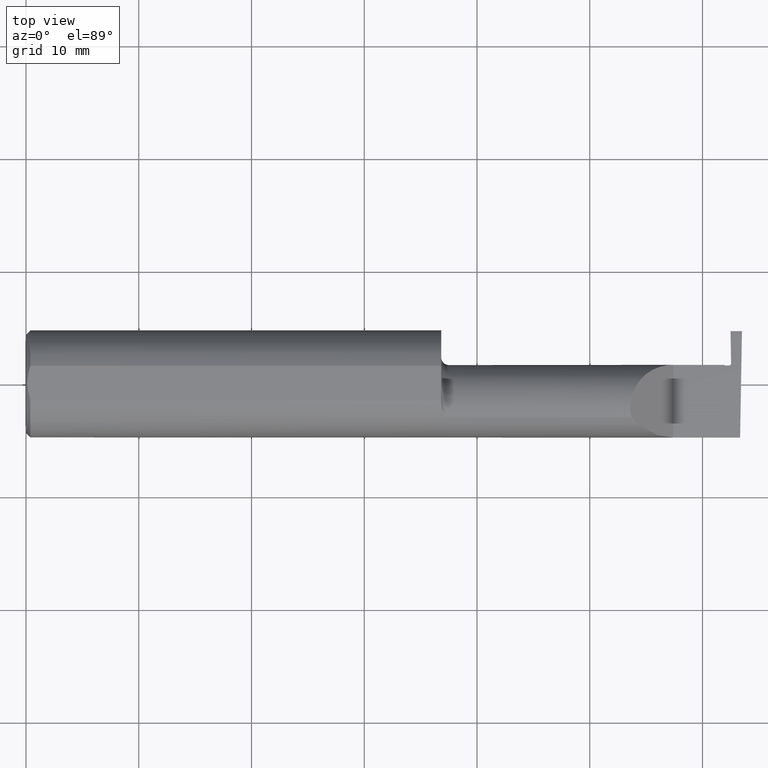
[diagram: clean part render]
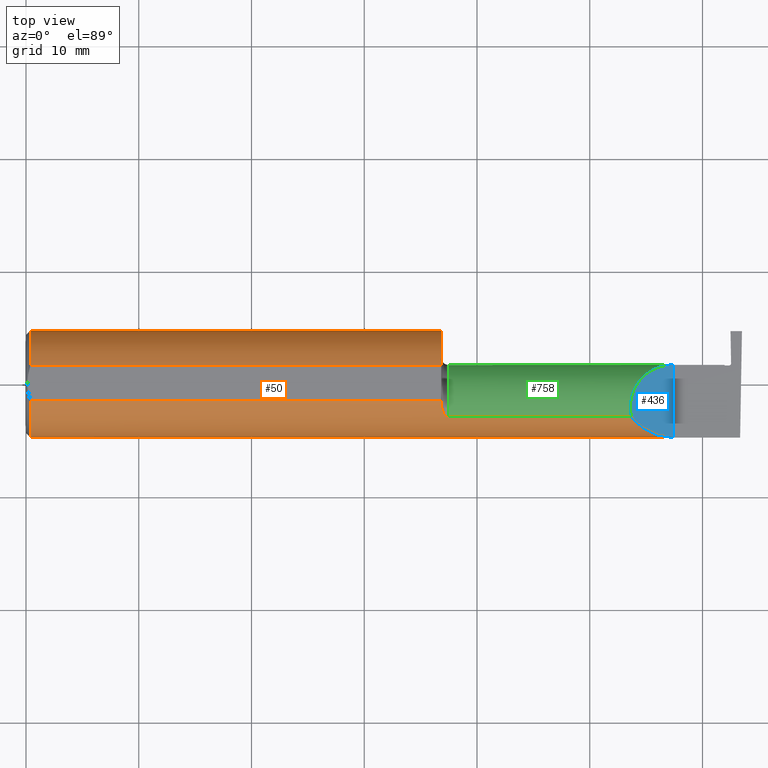
[diagram: same view with three faces highlighted in distinct colors, each labeled with its STEP entity id]
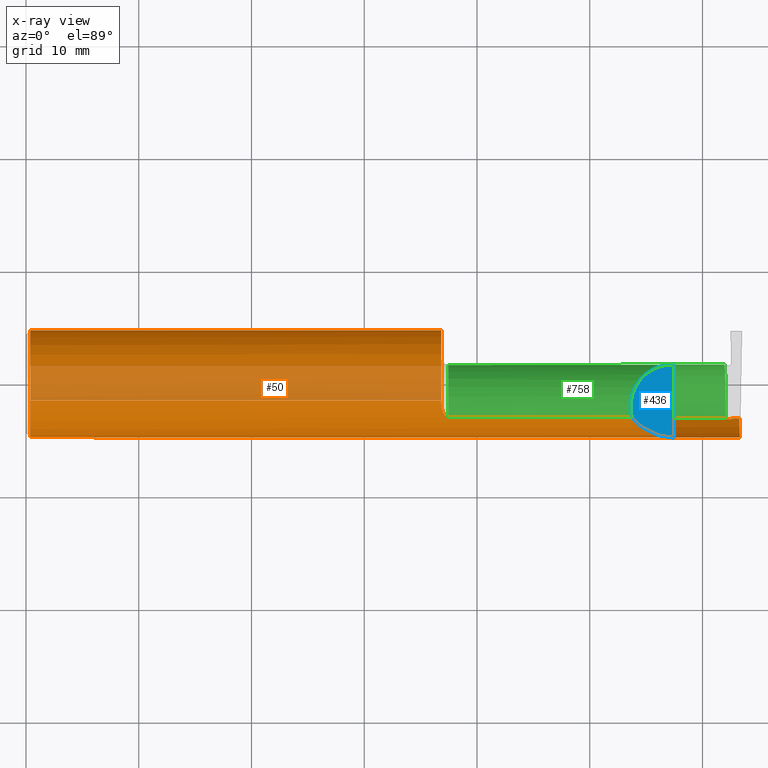
[diagram: x-ray of the same camera — body ghosted, the three highlighted faces saturated]
A machine part, top view with three faces highlighted in distinct colors.
The next image is the same camera in x-ray (body ghosted, the three faces saturated) — at least one of them is partly hidden behind the body in this view.
Their STEP definitions:

[orange] entity #50 — the highlighted cylindrical surface (partial cylindrical patch) has radius 4.7587 mm, axis along (-1, -0, -0).
#2 = VECTOR ( 'NONE', #68, 39.37007874015748143 ) ;
#8 = DIRECTION ( 'NONE',  ( -1.000000000000000000, -1.698910443821059307E-17, -0.000000000000000000 ) ) ;
#10 = DIRECTION ( 'NONE',  ( 1.000000000000000000, 0.000000000000000000, 0.000000000000000000 ) ) ;
#24 = CARTESIAN_POINT ( 'NONE',  ( 2.464039528729827566, -0.1189754524816424575, -0.1447262341929762275 ) ) ;
#27 = CARTESIAN_POINT ( 'NONE',  ( 2.443647039189928538, -0.1172600179964006645, -0.1461167706989302539 ) ) ;
#32 = EDGE_CURVE ( 'NONE', #170, #101, #773, .T. ) ;
#36 = CARTESIAN_POINT ( 'NONE',  ( 1.472174967710399462, -0.1172600179964007616, -0.1461167706989303650 ) ) ;
#39 =( BOUNDED_CURVE ( )  B_SPLINE_CURVE ( 3, ( #78, #790, #492, #145 ),
 .UNSPECIFIED., .F., .F. ) 
 B_SPLINE_CURVE_WITH_KNOTS ( ( 4, 4 ),
 ( 4.712388980384688786, 5.606916381293135743 ),
 .UNSPECIFIED. ) 
 CURVE ( )  GEOMETRIC_REPRESENTATION_ITEM ( )  RATIONAL_B_SPLINE_CURVE ( ( 1.000000000000000000, 0.9344226172588803170, 0.9344226172588803170, 1.000000000000000000 ) ) 
 REPRESENTATION_ITEM ( '' )  );
#43 = CARTESIAN_POINT ( 'NONE',  ( 1.472161949849308371, -0.1172600179964061046, 0.1461167706989260351 ) ) ;
#44 =( BOUNDED_CURVE ( )  B_SPLINE_CURVE ( 3, ( #142, #201, #917, #607 ),
 .UNSPECIFIED., .F., .F. ) 
 B_SPLINE_CURVE_WITH_KNOTS ( ( 4, 4 ),
 ( 0.08839520912052888091, 0.9829226100289757406 ),
 .UNSPECIFIED. ) 
 CURVE ( )  GEOMETRIC_REPRESENTATION_ITEM ( )  RATIONAL_B_SPLINE_CURVE ( ( 1.000000000000000000, 0.9344226172588803170, 0.9344226172588803170, 1.000000000000000000 ) ) 
 REPRESENTATION_ITEM ( '' )  );
#50 = ADVANCED_FACE ( 'NONE', ( #261 ), #679, .T. ) ;
#52 = CARTESIAN_POINT ( 'NONE',  ( 0.000000000000000000, 0.000000000000000000, 0.000000000000000000 ) ) ;
#54 = AXIS2_PLACEMENT_3D ( 'NONE', #539, #199, #688 ) ;
#58 = ORIENTED_EDGE ( 'NONE', *, *, #262, .F. ) ;
#62 = EDGE_CURVE ( 'NONE', #178, #312, #600, .T. ) ;
#68 = DIRECTION ( 'NONE',  ( -1.000000000000000000, -1.698910443821059307E-17, -0.000000000000000000 ) ) ;
#75 = CARTESIAN_POINT ( 'NONE',  ( 1.474999999999999867, -0.1172600179964006784, -0.1461167706989302817 ) ) ;
#78 = CARTESIAN_POINT ( 'NONE',  ( 2.260000000000000231, -0.1873499999999999888, 2.939152317953647352E-17 ) ) ;
#80 = VERTEX_POINT ( 'NONE', #399 ) ;
#98 = EDGE_CURVE ( 'NONE', #448, #387, #578, .T. ) ;
#101 = VERTEX_POINT ( 'NONE', #325 ) ;
#102 = CARTESIAN_POINT ( 'NONE',  ( 1.463163223656403167, -0.1119926267047276908, 0.1502091925606063028 ) ) ;
#112 = CARTESIAN_POINT ( 'NONE',  ( 1.449999999999999734, -0.07367581953296704900, 0.1723443821957855171 ) ) ;
#121 = CARTESIAN_POINT ( 'NONE',  ( 2.457479760627133025, -0.1207023328152337649, -0.1432863527968496753 ) ) ;
#124 = EDGE_CURVE ( 'NONE', #242, #448, #136, .T. ) ;
#125 = CARTESIAN_POINT ( 'NONE',  ( 2.456234333133886949, -0.1206275801653977214, -0.1433492567244089855 ) ) ;
#127 = CARTESIAN_POINT ( 'NONE',  ( 2.454366191791580221, -0.1205154511844951787, -0.1434436126209218398 ) ) ;
#133 = CARTESIAN_POINT ( 'NONE',  ( 1.463203859946834440, -0.1120371980050639121, -0.1501764597936558754 ) ) ;
#136 = CIRCLE ( 'NONE', #258, 0.1873499999999999888 ) ;
#137 = VECTOR ( 'NONE', #507, 39.37007874015748143 ) ;
#142 = CARTESIAN_POINT ( 'NONE',  ( 2.490903355898019367, -0.1172600179964007477, -0.1461167706989302817 ) ) ;
#145 = CARTESIAN_POINT ( 'NONE',  ( 2.113883229301070532, -0.1172600179964008726, 0.1461167706989301707 ) ) ;
#155 = DIRECTION ( 'NONE',  ( 1.000000000000000000, 1.698910443821059307E-17, 0.000000000000000000 ) ) ;
#156 = CARTESIAN_POINT ( 'NONE',  ( 1.474999999999999867, -0.1172600179964007477, 0.1461167706989302539 ) ) ;
#161 = CARTESIAN_POINT ( 'NONE',  ( 1.465028532764138580, -0.1137241120808236000, -0.1488947809299403513 ) ) ;
#170 = VERTEX_POINT ( 'NONE', #703 ) ;
#178 = VERTEX_POINT ( 'NONE', #491 ) ;
#184 = CARTESIAN_POINT ( 'NONE',  ( 1.458475602106621638, -0.1064978748893405103, 0.1542035505680384166 ) ) ;
#187 = LINE ( 'NONE', #465, #484 ) ;
#189 = CARTESIAN_POINT ( 'NONE',  ( 0.01499999999999999944, 0.000000000000000000, 0.000000000000000000 ) ) ;
#199 = DIRECTION ( 'NONE',  ( 1.000000000000000000, 1.698910443821059307E-17, 0.000000000000000000 ) ) ;
#201 = CARTESIAN_POINT ( 'NONE',  ( 2.491063981715931686, -0.1623470442677541759, -0.1099340280425337851 ) ) ;
#209 = VECTOR ( 'NONE', #429, 39.37007874015748143 ) ;
#212 = CARTESIAN_POINT ( 'NONE',  ( 1.450000000000000178, 0.06039039658754216666, 0.1773499999999999799 ) ) ;
#221 = ORIENTED_EDGE ( 'NONE', *, *, #236, .F. ) ;
#222 = EDGE_CURVE ( 'NONE', #764, #242, #453, .T. ) ;
#228 = CARTESIAN_POINT ( 'NONE',  ( 0.01499999999999756042, 0.06039039658754215278, 0.1773499999999999799 ) ) ;
#230 = ORIENTED_EDGE ( 'NONE', *, *, #98, .F. ) ;
#235 = ORIENTED_EDGE ( 'NONE', *, *, #557, .T. ) ;
#236 = EDGE_CURVE ( 'NONE', #387, #178, #875, .T. ) ;
#242 = VERTEX_POINT ( 'NONE', #228 ) ;
#248 = EDGE_CURVE ( 'NONE', #80, #764, #838, .T. ) ;
#250 = B_SPLINE_CURVE_WITH_KNOTS ( 'NONE', 3,
 ( #860, #564, #873, #367 ),
 .UNSPECIFIED., .F., .F.,
 ( 4, 4 ),
 ( 0.000000000000000000, 9.502270577754854536E-05 ),
 .UNSPECIFIED. ) ;
#256 = LINE ( 'NONE', #394, #137 ) ;
#258 = AXIS2_PLACEMENT_3D ( 'NONE', #189, #472, #686 ) ;
#259 = CARTESIAN_POINT ( 'NONE',  ( 1.474999999999999867, -0.1172600179964007477, 0.1461167706989302539 ) ) ;
#261 = FACE_OUTER_BOUND ( 'NONE', #306, .T. ) ;
#262 = EDGE_CURVE ( 'NONE', #455, #170, #830, .T. ) ;
#264 = CARTESIAN_POINT ( 'NONE',  ( 2.448761823782073410, -0.1201779628842303410, -0.1437264808475257616 ) ) ;
#270 = CARTESIAN_POINT ( 'NONE',  ( 2.113883229301070532, -0.1172600179964008726, 0.1461167706989301707 ) ) ;
#280 = VECTOR ( 'NONE', #10, 39.37007874015748143 ) ;
#282 = CARTESIAN_POINT ( 'NONE',  ( 1.458439486659307338, -0.1064616213911158960, -0.1542305641651499637 ) ) ;
#292 = ORIENTED_EDGE ( 'NONE', *, *, #675, .F. ) ;
#294 = ORIENTED_EDGE ( 'NONE', *, *, #124, .F. ) ;
#300 = CARTESIAN_POINT ( 'NONE',  ( 1.964999999999999858, -0.1172600179964007477, -0.1461167706989302817 ) ) ;
#304 = EDGE_CURVE ( 'NONE', #366, #80, #866, .T. ) ;
#306 = EDGE_LOOP ( 'NONE', ( #513, #235, #438, #820, #292, #374, #877, #221, #230, #294, #654, #728, #643, #544, #874, #497, #58 ) ) ;
#310 = CARTESIAN_POINT ( 'NONE',  ( 0.000000000000000000, -0.06039039658753697637, 0.1773499999999999799 ) ) ;
#311 = CARTESIAN_POINT ( 'NONE',  ( 2.490903355898019367, -0.1172600179964007477, -0.1461167706989302817 ) ) ;
#312 = VERTEX_POINT ( 'NONE', #356 ) ;
#322 = CARTESIAN_POINT ( 'NONE',  ( 0.01499999999999999944, 0.000000000000000000, 0.000000000000000000 ) ) ;
#325 = CARTESIAN_POINT ( 'NONE',  ( 2.445025619349194379, -0.1199521637389752565, -0.1439149085895483904 ) ) ;
#327 = CARTESIAN_POINT ( 'NONE',  ( 1.465004157323697376, -0.1137044537483316436, 0.1489098419202428691 ) ) ;
#336 = CARTESIAN_POINT ( 'NONE',  ( 2.452498061677573116, -0.1204031018441790585, -0.1435379292247014882 ) ) ;
#356 = CARTESIAN_POINT ( 'NONE',  ( 1.450000000000000178, -0.06851976604679065053, 0.1743704796142198643 ) ) ;
#359 = CARTESIAN_POINT ( 'NONE',  ( 1.450000000000000178, 0.000000000000000000, 0.000000000000000000 ) ) ;
#364 = CARTESIAN_POINT ( 'NONE',  ( 1.474999999999999867, -0.1172600179964006784, -0.1461167706989302817 ) ) ;
#366 = VERTEX_POINT ( 'NONE', #75 ) ;
#367 = CARTESIAN_POINT ( 'NONE',  ( 2.443647039189928538, -0.1172600179964006645, -0.1461167706989302539 ) ) ;
#374 = ORIENTED_EDGE ( 'NONE', *, *, #890, .F. ) ;
#376 = CARTESIAN_POINT ( 'NONE',  ( 2.465157082534621402, -0.1172600179964006228, -0.1461167706989302539 ) ) ;
#382 = EDGE_CURVE ( 'NONE', #511, #568, #39, .T. ) ;
#383 = CARTESIAN_POINT ( 'NONE',  ( 1.450000000000000178, -0.06851976604679065053, 0.1743704796142198643 ) ) ;
#387 = VERTEX_POINT ( 'NONE', #430 ) ;
#389 = CARTESIAN_POINT ( 'NONE',  ( 1.450353553376444893, -0.07868116735658677030, 0.1701139256562800017 ) ) ;
#394 = CARTESIAN_POINT ( 'NONE',  ( 1.964999999999999858, -0.1172600179964007477, 0.1461167706989302817 ) ) ;
#395 = B_SPLINE_CURVE_WITH_KNOTS ( 'NONE', 3,
 ( #383, #112, #389, #676, #884, #449, #184, #102, #327, #741, #43, #259 ),
 .UNSPECIFIED., .F., .F.,
 ( 4, 2, 2, 2, 2, 4 ),
 ( 4.423516731080786679E-05, 0.0004615475116586711382, 0.0008788598560065344909, 0.001296172200354397735, 0.001504828372528328653, 0.001713484544702259570 ),
 .UNSPECIFIED. ) ;
#399 = CARTESIAN_POINT ( 'NONE',  ( 1.450000000000000178, -0.06851976604679065053, -0.1743704796142198643 ) ) ;
#402 = CARTESIAN_POINT ( 'NONE',  ( 2.458725193120614883, -0.1207769875284128019, -0.1432234314053002222 ) ) ;
#403 = CARTESIAN_POINT ( 'NONE',  ( 2.445025619349194379, -0.1199521637389752565, -0.1439149085895483904 ) ) ;
#408 = CARTESIAN_POINT ( 'NONE',  ( 1.449999999999999734, -0.07368234487347195827, -0.1723418180300747837 ) ) ;
#414 = CARTESIAN_POINT ( 'NONE',  ( 1.451843912362378308, -0.08846956905169091334, -0.1652353808078972086 ) ) ;
#429 = DIRECTION ( 'NONE',  ( -1.000000000000000000, -0.000000000000000000, -0.000000000000000000 ) ) ;
#430 = CARTESIAN_POINT ( 'NONE',  ( 0.01499999999999999944, -0.06039039658753697637, 0.1773499999999999799 ) ) ;
#432 = VERTEX_POINT ( 'NONE', #673 ) ;
#438 = ORIENTED_EDGE ( 'NONE', *, *, #803, .T. ) ;
#445 = CARTESIAN_POINT ( 'NONE',  ( 2.462366680899374050, -0.1203677650155589168, -0.1435703392140972312 ) ) ;
#448 = VERTEX_POINT ( 'NONE', #663 ) ;
#449 = CARTESIAN_POINT ( 'NONE',  ( 1.456287624083520083, -0.1021858045380145685, 0.1571187174372874473 ) ) ;
#453 = LINE ( 'NONE', #529, #209 ) ;
#455 = VERTEX_POINT ( 'NONE', #376 ) ;
#460 = VERTEX_POINT ( 'NONE', #311 ) ;
#465 = CARTESIAN_POINT ( 'NONE',  ( 3.749399456654646757E-32, -0.1873499999999999888, 3.061616997868384127E-16 ) ) ;
#472 = DIRECTION ( 'NONE',  ( -1.000000000000000000, -0.000000000000000000, -0.000000000000000000 ) ) ;
#475 = DIRECTION ( 'NONE',  ( -1.000000000000000000, -0.000000000000000000, -0.000000000000000000 ) ) ;
#484 = VECTOR ( 'NONE', #680, 39.37007874015748143 ) ;
#491 = CARTESIAN_POINT ( 'NONE',  ( 1.450000000000000178, -0.06039039658753695555, 0.1773499999999999799 ) ) ;
#492 = CARTESIAN_POINT ( 'NONE',  ( 2.150065971957467070, -0.1623470442677542591, 0.1099340280425335908 ) ) ;
#493 = LINE ( 'NONE', #300, #520 ) ;
#497 = ORIENTED_EDGE ( 'NONE', *, *, #32, .F. ) ;
#507 = DIRECTION ( 'NONE',  ( 1.000000000000000000, 1.698910443821059307E-17, 0.000000000000000000 ) ) ;
#509 = CARTESIAN_POINT ( 'NONE',  ( 2.461215914213557010, -0.1209260915574008610, -0.1430975625166215626 ) ) ;
#511 = VERTEX_POINT ( 'NONE', #604 ) ;
#513 = ORIENTED_EDGE ( 'NONE', *, *, #625, .F. ) ;
#520 = VECTOR ( 'NONE', #8, 39.37007874015748143 ) ;
#529 = CARTESIAN_POINT ( 'NONE',  ( 0.000000000000000000, 0.06039039658753697637, 0.1773499999999999799 ) ) ;
#531 = VERTEX_POINT ( 'NONE', #156 ) ;
#533 = CARTESIAN_POINT ( 'NONE',  ( 1.964999999999999858, -0.1172600179964007477, -0.1461167706989302817 ) ) ;
#539 = CARTESIAN_POINT ( 'NONE',  ( 1.450000000000000178, 0.000000000000000000, 0.000000000000000000 ) ) ;
#544 = ORIENTED_EDGE ( 'NONE', *, *, #751, .F. ) ;
#557 = EDGE_CURVE ( 'NONE', #460, #432, #44, .T. ) ;
#563 = AXIS2_PLACEMENT_3D ( 'NONE', #52, #475, #915 ) ;
#564 = CARTESIAN_POINT ( 'NONE',  ( 2.444567321465403786, -0.1190612593473132919, -0.1446574717507368990 ) ) ;
#568 = VERTEX_POINT ( 'NONE', #270 ) ;
#578 = CIRCLE ( 'NONE', #629, 0.1873499999999999888 ) ;
#596 = CARTESIAN_POINT ( 'NONE',  ( 2.465157082534621402, -0.1172600179964006228, -0.1461167706989302539 ) ) ;
#600 = CIRCLE ( 'NONE', #54, 0.1873499999999999888 ) ;
#604 = CARTESIAN_POINT ( 'NONE',  ( 2.260000000000000231, -0.1873499999999999888, 2.939152317953647352E-17 ) ) ;
#607 = CARTESIAN_POINT ( 'NONE',  ( 2.493506715846705468, -0.1873499999999999888, 0.000000000000000000 ) ) ;
#625 = EDGE_CURVE ( 'NONE', #460, #455, #698, .T. ) ;
#629 = AXIS2_PLACEMENT_3D ( 'NONE', #322, #750, #828 ) ;
#641 = CARTESIAN_POINT ( 'NONE',  ( 1.456304331342287872, -0.1022198306720691063, -0.1570962426853818317 ) ) ;
#643 = ORIENTED_EDGE ( 'NONE', *, *, #304, .F. ) ;
#644 = DIRECTION ( 'NONE',  ( 0.000000000000000000, 1.000000000000000000, 0.000000000000000000 ) ) ;
#649 = CARTESIAN_POINT ( 'NONE',  ( 1.469511795768554840, -0.1163687266324235497, -0.1468371510166788796 ) ) ;
#654 = ORIENTED_EDGE ( 'NONE', *, *, #222, .F. ) ;
#663 = CARTESIAN_POINT ( 'NONE',  ( 0.01499999999999999944, 0.000000000000000000, -0.1873499999999999888 ) ) ;
#673 = CARTESIAN_POINT ( 'NONE',  ( 2.493506715846705468, -0.1873499999999999888, 0.000000000000000000 ) ) ;
#675 = EDGE_CURVE ( 'NONE', #531, #568, #256, .T. ) ;
#676 = CARTESIAN_POINT ( 'NONE',  ( 1.451829077486400443, -0.08839624499054649087, 0.1652742498708037744 ) ) ;
#679 = CYLINDRICAL_SURFACE ( 'NONE', #563, 0.1873499999999999888 ) ;
#680 = DIRECTION ( 'NONE',  ( -1.000000000000000000, -0.000000000000000000, -0.000000000000000000 ) ) ;
#684 = CARTESIAN_POINT ( 'NONE',  ( 2.446893715973848416, -0.1200651732629578750, -0.1438207158679070397 ) ) ;
#686 = DIRECTION ( 'NONE',  ( 0.000000000000000000, 0.000000000000000000, 1.000000000000000000 ) ) ;
#688 = DIRECTION ( 'NONE',  ( 0.000000000000000000, 1.000000000000000000, 0.000000000000000000 ) ) ;
#698 = LINE ( 'NONE', #533, #2 ) ;
#701 = CARTESIAN_POINT ( 'NONE',  ( 1.450358271039144276, -0.07873626113568081564, -0.1700887912276896619 ) ) ;
#703 = CARTESIAN_POINT ( 'NONE',  ( 2.459970630616667542, -0.1208515442419138414, -0.1431604929942082161 ) ) ;
#718 = CARTESIAN_POINT ( 'NONE',  ( 2.464654264848957332, -0.1181371930990890856, -0.1454128298177074785 ) ) ;
#728 = ORIENTED_EDGE ( 'NONE', *, *, #248, .F. ) ;
#729 = AXIS2_PLACEMENT_3D ( 'NONE', #359, #155, #644 ) ;
#741 = CARTESIAN_POINT ( 'NONE',  ( 1.469481469043492083, -0.1163560528186165927, 0.1468472430636323656 ) ) ;
#745 = EDGE_CURVE ( 'NONE', #101, #801, #250, .T. ) ;
#750 = DIRECTION ( 'NONE',  ( -1.000000000000000000, -0.000000000000000000, -0.000000000000000000 ) ) ;
#751 = EDGE_CURVE ( 'NONE', #801, #366, #493, .T. ) ;
#764 = VERTEX_POINT ( 'NONE', #212 ) ;
#773 = B_SPLINE_CURVE_WITH_KNOTS ( 'NONE', 3,
 ( #912, #402, #121, #125, #127, #336, #836, #264, #684, #403 ),
 .UNSPECIFIED., .F., .F.,
 ( 4, 3, 3, 4 ),
 ( 0.000000000000000000, 9.519312269081031913E-05, 0.0002379828151242639842, 0.0003807725157307731705 ),
 .UNSPECIFIED. ) ;
#790 = CARTESIAN_POINT ( 'NONE',  ( 2.202189699843949189, -0.1873500000000000443, 0.05781030015605096578 ) ) ;
#799 = CARTESIAN_POINT ( 'NONE',  ( 2.459970630616667542, -0.1208515442419138414, -0.1431604929942082161 ) ) ;
#801 = VERTEX_POINT ( 'NONE', #27 ) ;
#803 = EDGE_CURVE ( 'NONE', #432, #511, #187, .T. ) ;
#820 = ORIENTED_EDGE ( 'NONE', *, *, #382, .T. ) ;
#828 = DIRECTION ( 'NONE',  ( 0.000000000000000000, 0.000000000000000000, 1.000000000000000000 ) ) ;
#830 = B_SPLINE_CURVE_WITH_KNOTS ( 'NONE', 3,
 ( #596, #718, #24, #445, #509, #799 ),
 .UNSPECIFIED., .F., .F.,
 ( 4, 2, 4 ),
 ( 0.0002880341540480791979, 0.0003798726319076238403, 0.0004717111097671684286 ),
 .UNSPECIFIED. ) ;
#836 = CARTESIAN_POINT ( 'NONE',  ( 2.450629942783285387, -0.1202905323674262339, -0.1436322050334156442 ) ) ;
#838 = CIRCLE ( 'NONE', #729, 0.1873499999999999888 ) ;
#851 = CARTESIAN_POINT ( 'NONE',  ( 1.452960551809340473, -0.09317341542745748162, -0.1626248379125197208 ) ) ;
#858 = CARTESIAN_POINT ( 'NONE',  ( 1.450000000000000178, -0.06851976604679065053, -0.1743704796142198643 ) ) ;
#860 = CARTESIAN_POINT ( 'NONE',  ( 2.445025619349194379, -0.1199521637389752565, -0.1439149085895483904 ) ) ;
#866 = B_SPLINE_CURVE_WITH_KNOTS ( 'NONE', 3,
 ( #364, #36, #649, #161, #133, #282, #641, #851, #414, #701, #408, #858 ),
 .UNSPECIFIED., .F., .F.,
 ( 4, 2, 2, 2, 2, 4 ),
 ( 1.967976973658592312E-07, 0.0002120314145722272182, 0.0004238660314470885418, 0.0008475352651967998051, 0.001271204498946511014, 0.001694873732696222006 ),
 .UNSPECIFIED. ) ;
#873 = CARTESIAN_POINT ( 'NONE',  ( 2.444107737563407934, -0.1181638109593589614, -0.1453914687462894706 ) ) ;
#874 = ORIENTED_EDGE ( 'NONE', *, *, #745, .F. ) ;
#875 = LINE ( 'NONE', #310, #280 ) ;
#877 = ORIENTED_EDGE ( 'NONE', *, *, #62, .F. ) ;
#884 = CARTESIAN_POINT ( 'NONE',  ( 1.452945243422983035, -0.09312071749437426937, 0.1626553472577906279 ) ) ;
#890 = EDGE_CURVE ( 'NONE', #312, #531, #395, .T. ) ;
#912 = CARTESIAN_POINT ( 'NONE',  ( 2.459970630616667542, -0.1208515442419138414, -0.1431604929942082161 ) ) ;
#915 = DIRECTION ( 'NONE',  ( 0.000000000000000000, 0.000000000000000000, 1.000000000000000000 ) ) ;
#917 = CARTESIAN_POINT ( 'NONE',  ( 2.491992669264299742, -0.1873499999999999888, -0.05781030015605114619 ) ) ;

[blue] entity #436 — the highlighted planar face has unit normal (-0.7071, 0, -0.7071).
#39 =( BOUNDED_CURVE ( )  B_SPLINE_CURVE ( 3, ( #78, #790, #492, #145 ),
 .UNSPECIFIED., .F., .F. ) 
 B_SPLINE_CURVE_WITH_KNOTS ( ( 4, 4 ),
 ( 4.712388980384688786, 5.606916381293135743 ),
 .UNSPECIFIED. ) 
 CURVE ( )  GEOMETRIC_REPRESENTATION_ITEM ( )  RATIONAL_B_SPLINE_CURVE ( ( 1.000000000000000000, 0.9344226172588803170, 0.9344226172588803170, 1.000000000000000000 ) ) 
 REPRESENTATION_ITEM ( '' )  );
#41 = DIRECTION ( 'NONE',  ( -0.7071067811865496822, 0.000000000000000000, -0.7071067811865454633 ) ) ;
#78 = CARTESIAN_POINT ( 'NONE',  ( 2.260000000000000231, -0.1873499999999999888, 2.939152317953647352E-17 ) ) ;
#111 = AXIS2_PLACEMENT_3D ( 'NONE', #876, #41, #229 ) ;
#139 = LINE ( 'NONE', #923, #810 ) ;
#145 = CARTESIAN_POINT ( 'NONE',  ( 2.113883229301070532, -0.1172600179964008726, 0.1461167706989301707 ) ) ;
#149 = ORIENTED_EDGE ( 'NONE', *, *, #330, .T. ) ;
#181 = CARTESIAN_POINT ( 'NONE',  ( 2.090221225029928576, -0.01530148607434178402, 0.1697787749700727655 ) ) ;
#194 = ORIENTED_EDGE ( 'NONE', *, *, #382, .F. ) ;
#207 = CARTESIAN_POINT ( 'NONE',  ( 2.260000000000000231, 0.06665000000000002867, 2.939152317953647352E-17 ) ) ;
#220 = CARTESIAN_POINT ( 'NONE',  ( 2.260000000000000231, 0.06665000000000002867, 2.939152317953647352E-17 ) ) ;
#229 = DIRECTION ( 'NONE',  ( -0.7071067811865454633, 0.000000000000000000, 0.7071067811865496822 ) ) ;
#270 = CARTESIAN_POINT ( 'NONE',  ( 2.113883229301070532, -0.1172600179964008726, 0.1461167706989301707 ) ) ;
#330 = EDGE_CURVE ( 'NONE', #511, #717, #139, .T. ) ;
#348 = DIRECTION ( 'NONE',  ( -0.000000000000000000, 1.000000000000000000, -0.000000000000000000 ) ) ;
#365 = PLANE ( 'NONE',  #111 ) ;
#382 = EDGE_CURVE ( 'NONE', #511, #568, #39, .T. ) ;
#436 = ADVANCED_FACE ( 'NONE', ( #447 ), #365, .F. ) ;
#444 = ORIENTED_EDGE ( 'NONE', *, *, #633, .F. ) ;
#447 = FACE_OUTER_BOUND ( 'NONE', #730, .T. ) ;
#492 = CARTESIAN_POINT ( 'NONE',  ( 2.150065971957467070, -0.1623470442677542591, 0.1099340280425335908 ) ) ;
#511 = VERTEX_POINT ( 'NONE', #604 ) ;
#559 = CARTESIAN_POINT ( 'NONE',  ( 2.113883229301070532, -0.1172600179964008726, 0.1461167706989301707 ) ) ;
#568 = VERTEX_POINT ( 'NONE', #270 ) ;
#604 = CARTESIAN_POINT ( 'NONE',  ( 2.260000000000000231, -0.1873499999999999888, 2.939152317953647352E-17 ) ) ;
#633 = EDGE_CURVE ( 'NONE', #568, #717, #809, .T. ) ;
#717 = VERTEX_POINT ( 'NONE', #220 ) ;
#730 = EDGE_LOOP ( 'NONE', ( #444, #194, #149 ) ) ;
#790 = CARTESIAN_POINT ( 'NONE',  ( 2.202189699843949189, -0.1873500000000000443, 0.05781030015605096578 ) ) ;
#809 =( BOUNDED_CURVE ( )  B_SPLINE_CURVE ( 3, ( #559, #181, #853, #207 ),
 .UNSPECIFIED., .F., .F. ) 
 B_SPLINE_CURVE_WITH_KNOTS ( ( 4, 4 ),
 ( 6.055147272130140479, 7.853981633974482790 ),
 .UNSPECIFIED. ) 
 CURVE ( )  GEOMETRIC_REPRESENTATION_ITEM ( )  RATIONAL_B_SPLINE_CURVE ( ( 1.000000000000000000, 0.7480442670255262883, 0.7480442670255262883, 1.000000000000000000 ) ) 
 REPRESENTATION_ITEM ( '' )  );
#810 = VECTOR ( 'NONE', #348, 39.37007874015748143 ) ;
#853 = CARTESIAN_POINT ( 'NONE',  ( 2.155331797197864940, 0.06665000000000001479, 0.1046682028021362204 ) ) ;
#876 = CARTESIAN_POINT ( 'NONE',  ( 2.260000000000000231, -0.2000000000000000111, 2.939152317953647352E-17 ) ) ;
#923 = CARTESIAN_POINT ( 'NONE',  ( 2.260000000000000231, -0.2000000000000000111, 2.939152317953647352E-17 ) ) ;

[green] entity #758 — the highlighted cylindrical surface (partial cylindrical patch) has radius 3.81 mm, axis along (-1, -0, -0).
#8 = DIRECTION ( 'NONE',  ( -1.000000000000000000, -1.698910443821059307E-17, -0.000000000000000000 ) ) ;
#21 = CARTESIAN_POINT ( 'NONE',  ( 2.443382066057282920, -0.02860029826595314462, -0.1401013635948298308 ) ) ;
#27 = CARTESIAN_POINT ( 'NONE',  ( 2.443647039189928538, -0.1172600179964006645, -0.1461167706989302539 ) ) ;
#72 = CARTESIAN_POINT ( 'NONE',  ( 2.438837466406853505, 0.06536221517194672204, -0.02262142833229785141 ) ) ;
#75 = CARTESIAN_POINT ( 'NONE',  ( 1.474999999999999867, -0.1172600179964006784, -0.1461167706989302817 ) ) ;
#84 = ORIENTED_EDGE ( 'NONE', *, *, #751, .T. ) ;
#100 = DIRECTION ( 'NONE',  ( 1.000000000000000000, 1.698910443821059307E-17, 0.000000000000000000 ) ) ;
#103 = ORIENTED_EDGE ( 'NONE', *, *, #452, .T. ) ;
#137 = VECTOR ( 'NONE', #507, 39.37007874015748143 ) ;
#146 = FACE_OUTER_BOUND ( 'NONE', #885, .T. ) ;
#148 = CARTESIAN_POINT ( 'NONE',  ( 2.438000000000489997, 0.06664999999950958764, 9.565530962387796850E-18 ) ) ;
#156 = CARTESIAN_POINT ( 'NONE',  ( 1.474999999999999867, -0.1172600179964007477, 0.1461167706989302539 ) ) ;
#165 = ORIENTED_EDGE ( 'NONE', *, *, #633, .T. ) ;
#167 = LINE ( 'NONE', #734, #906 ) ;
#181 = CARTESIAN_POINT ( 'NONE',  ( 2.090221225029928576, -0.01530148607434178402, 0.1697787749700727655 ) ) ;
#183 = EDGE_CURVE ( 'NONE', #531, #366, #777, .T. ) ;
#202 = DIRECTION ( 'NONE',  ( -1.000000000000000000, -1.698910443821059307E-17, -0.000000000000000000 ) ) ;
#207 = CARTESIAN_POINT ( 'NONE',  ( 2.260000000000000231, 0.06665000000000002867, 2.939152317953647352E-17 ) ) ;
#213 = CARTESIAN_POINT ( 'NONE',  ( 1.474999999999999867, -0.08334999999999996578, 0.000000000000000000 ) ) ;
#214 = CARTESIAN_POINT ( 'NONE',  ( 2.438000000000489997, 0.06664999999950958764, 9.565530962387796850E-18 ) ) ;
#215 = CARTESIAN_POINT ( 'NONE',  ( 2.440931591934110134, 0.04684530795327673802, -0.07533264334207831481 ) ) ;
#220 = CARTESIAN_POINT ( 'NONE',  ( 2.260000000000000231, 0.06665000000000002867, 2.939152317953647352E-17 ) ) ;
#231 = CARTESIAN_POINT ( 'NONE',  ( 2.443815344807645840, -0.07244319703337448457, -0.1500290047513203606 ) ) ;
#246 = ORIENTED_EDGE ( 'NONE', *, *, #183, .F. ) ;
#256 = LINE ( 'NONE', #394, #137 ) ;
#270 = CARTESIAN_POINT ( 'NONE',  ( 2.113883229301070532, -0.1172600179964008726, 0.1461167706989301707 ) ) ;
#279 = CARTESIAN_POINT ( 'NONE',  ( 2.443647039189928538, -0.1172600179964006645, -0.1461167706989302539 ) ) ;
#300 = CARTESIAN_POINT ( 'NONE',  ( 1.964999999999999858, -0.1172600179964007477, -0.1461167706989302817 ) ) ;
#334 = VERTEX_POINT ( 'NONE', #214 ) ;
#349 = CARTESIAN_POINT ( 'NONE',  ( 2.443789578363028347, -0.09504051956460579653, -0.1499699715607563100 ) ) ;
#353 = CARTESIAN_POINT ( 'NONE',  ( 2.442238177621204542, 0.01877818259011305307, -0.1104401941423084621 ) ) ;
#366 = VERTEX_POINT ( 'NONE', #75 ) ;
#386 = AXIS2_PLACEMENT_3D ( 'NONE', #443, #500, #792 ) ;
#394 = CARTESIAN_POINT ( 'NONE',  ( 1.964999999999999858, -0.1172600179964007477, 0.1461167706989302817 ) ) ;
#421 = CYLINDRICAL_SURFACE ( 'NONE', #386, 0.1499999999999999667 ) ;
#431 = CARTESIAN_POINT ( 'NONE',  ( 2.439687465777425679, 0.06031148358189810516, -0.04459181647105989188 ) ) ;
#437 = CARTESIAN_POINT ( 'NONE',  ( 2.441904550514357286, 0.02678675195048128149, -0.1024442611876406201 ) ) ;
#443 = CARTESIAN_POINT ( 'NONE',  ( 1.450000000000000178, -0.08334999999999996578, 0.000000000000000000 ) ) ;
#452 = EDGE_CURVE ( 'NONE', #717, #334, #167, .T. ) ;
#493 = LINE ( 'NONE', #300, #520 ) ;
#494 = DIRECTION ( 'NONE',  ( 0.000000000000000000, -1.000000000000000000, 0.000000000000000000 ) ) ;
#500 = DIRECTION ( 'NONE',  ( -1.000000000000000000, -1.698910443821059307E-17, -0.000000000000000000 ) ) ;
#507 = DIRECTION ( 'NONE',  ( 1.000000000000000000, 1.698910443821059307E-17, 0.000000000000000000 ) ) ;
#520 = VECTOR ( 'NONE', #8, 39.37007874015748143 ) ;
#531 = VERTEX_POINT ( 'NONE', #156 ) ;
#559 = CARTESIAN_POINT ( 'NONE',  ( 2.113883229301070532, -0.1172600179964008726, 0.1461167706989301707 ) ) ;
#568 = VERTEX_POINT ( 'NONE', #270 ) ;
#579 = CARTESIAN_POINT ( 'NONE',  ( 2.438434870138783683, 0.06665000001257273543, -0.01133157783874133052 ) ) ;
#586 = CARTESIAN_POINT ( 'NONE',  ( 2.443526505352201728, -0.03939163170915318396, -0.1438495478264791294 ) ) ;
#633 = EDGE_CURVE ( 'NONE', #568, #717, #809, .T. ) ;
#647 = ORIENTED_EDGE ( 'NONE', *, *, #675, .T. ) ;
#652 = CARTESIAN_POINT ( 'NONE',  ( 2.443046201255560490, -0.008364411415370930775, -0.1303958719657741516 ) ) ;
#675 = EDGE_CURVE ( 'NONE', #531, #568, #256, .T. ) ;
#699 = B_SPLINE_CURVE_WITH_KNOTS ( 'NONE', 3,
 ( #148, #579, #72, #431, #716, #215, #707, #437, #353, #723, #652, #21, #586, #878, #231, #349, #928, #279 ),
 .UNSPECIFIED., .F., .F.,
 ( 4, 2, 2, 2, 2, 2, 2, 2, 4 ),
 ( 4.212796569500340684E-12, 0.0008601682351899182354, 0.001720336466167039476, 0.002580504697144161801, 0.003440672928121283475, 0.004300841159098405149, 0.005161009390075526823, 0.006021177621052648497, 0.006881345852029770171 ),
 .UNSPECIFIED. ) ;
#707 = CARTESIAN_POINT ( 'NONE',  ( 2.441258951838694014, 0.04075339827321189379, -0.08498986596956091544 ) ) ;
#716 = CARTESIAN_POINT ( 'NONE',  ( 2.440128188932052744, 0.05660152407036175837, -0.05513071989677156837 ) ) ;
#717 = VERTEX_POINT ( 'NONE', #220 ) ;
#723 = CARTESIAN_POINT ( 'NONE',  ( 2.442833554690653663, 0.001115449006579867855, -0.1244700368983118477 ) ) ;
#734 = CARTESIAN_POINT ( 'NONE',  ( 1.450000000000000178, 0.06665000000000001479, 1.285879139104721472E-16 ) ) ;
#740 = ORIENTED_EDGE ( 'NONE', *, *, #763, .T. ) ;
#751 = EDGE_CURVE ( 'NONE', #801, #366, #493, .T. ) ;
#758 = ADVANCED_FACE ( 'NONE', ( #146 ), #421, .T. ) ;
#763 = EDGE_CURVE ( 'NONE', #334, #801, #699, .T. ) ;
#777 = CIRCLE ( 'NONE', #871, 0.1499999999999999667 ) ;
#792 = DIRECTION ( 'NONE',  ( 0.000000000000000000, -1.000000000000000000, 0.000000000000000000 ) ) ;
#801 = VERTEX_POINT ( 'NONE', #27 ) ;
#809 =( BOUNDED_CURVE ( )  B_SPLINE_CURVE ( 3, ( #559, #181, #853, #207 ),
 .UNSPECIFIED., .F., .F. ) 
 B_SPLINE_CURVE_WITH_KNOTS ( ( 4, 4 ),
 ( 6.055147272130140479, 7.853981633974482790 ),
 .UNSPECIFIED. ) 
 CURVE ( )  GEOMETRIC_REPRESENTATION_ITEM ( )  RATIONAL_B_SPLINE_CURVE ( ( 1.000000000000000000, 0.7480442670255262883, 0.7480442670255262883, 1.000000000000000000 ) ) 
 REPRESENTATION_ITEM ( '' )  );
#853 = CARTESIAN_POINT ( 'NONE',  ( 2.155331797197864940, 0.06665000000000001479, 0.1046682028021362204 ) ) ;
#871 = AXIS2_PLACEMENT_3D ( 'NONE', #213, #202, #494 ) ;
#878 = CARTESIAN_POINT ( 'NONE',  ( 2.443759016412410112, -0.06120540515719235380, -0.1487771738941297550 ) ) ;
#885 = EDGE_LOOP ( 'NONE', ( #103, #740, #84, #246, #647, #165 ) ) ;
#906 = VECTOR ( 'NONE', #100, 39.37007874015748143 ) ;
#928 = CARTESIAN_POINT ( 'NONE',  ( 2.443733570786925213, -0.1062136811403316533, -0.1486803469386175636 ) ) ;